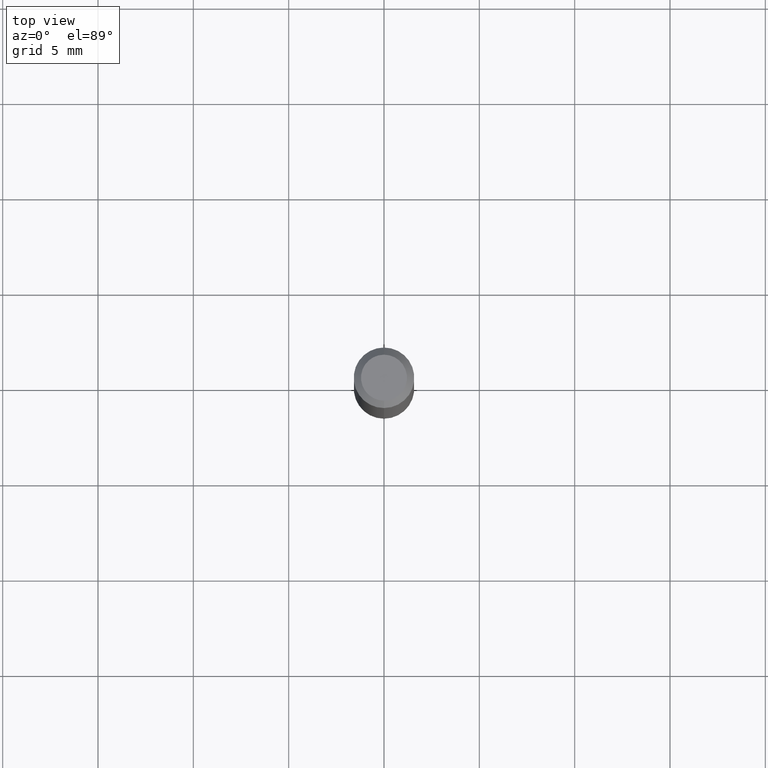
[diagram: clean part render]
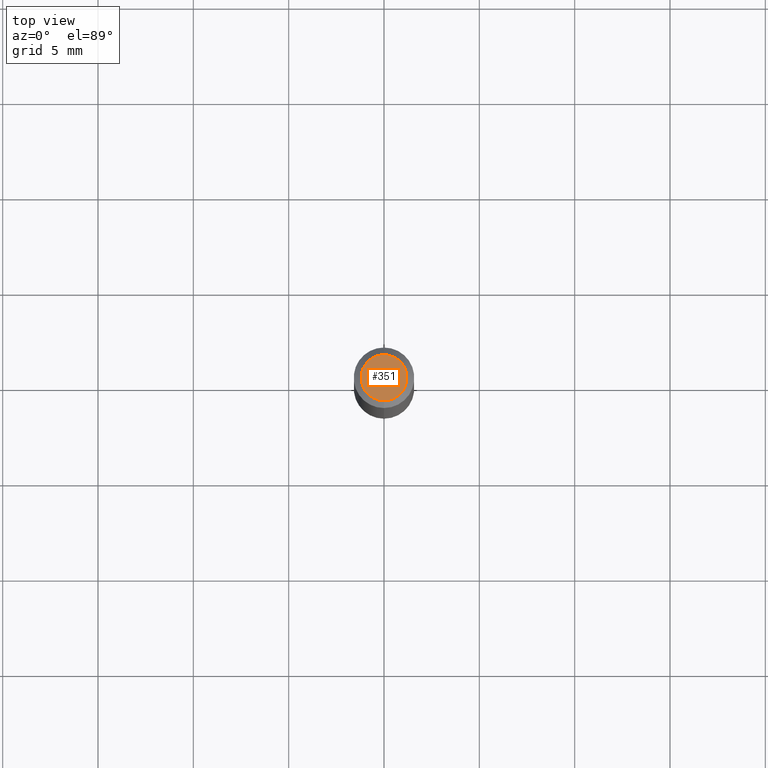
[diagram: same view with one face highlighted and labeled with its STEP entity id]
A machine part, top view. The second image highlights one B-rep face of the part: STEP entity #351.
In plain terms, the highlighted planar face has unit normal (0, -0, -1).
Its self-contained STEP definition (entity closure, byte-faithful):
#14 = PLANE ( 'NONE',  #79 ) ;
#18 = CIRCLE ( 'NONE', #303, 0.04749999999999999362 ) ;
#79 = AXIS2_PLACEMENT_3D ( 'NONE', #135, #321, #404 ) ;
#88 = CARTESIAN_POINT ( 'NONE',  ( 3.840629472727447874E-16, 0.04749999999999999362, -1.747056831868805136E-16 ) ) ;
#128 = CARTESIAN_POINT ( 'NONE',  ( 2.166898054252176788E-46, -3.093736676083309721E-32, -8.860841916345176913E-18 ) ) ;
#129 = CIRCLE ( 'NONE', #314, 0.04749999999999999362 ) ;
#132 = EDGE_LOOP ( 'NONE', ( #289, #279 ) ) ;
#135 = CARTESIAN_POINT ( 'NONE',  ( 3.316907271900976096E-16, 0.04749999999999999362, -1.702752622287078928E-16 ) ) ;
#153 = DIRECTION ( 'NONE',  ( -2.445476484864267913E-29, 3.491470342537585919E-15, 1.000000000000000000 ) ) ;
#155 = DIRECTION ( 'NONE',  ( -6.982962677686266711E-15, -1.000000000000000000, 3.491470342537586314E-15 ) ) ;
#208 = EDGE_CURVE ( 'NONE', #319, #323, #129, .T. ) ;
#213 = DIRECTION ( 'NONE',  ( -2.445476484864267913E-29, 3.491470342537585919E-15, 1.000000000000000000 ) ) ;
#279 = ORIENTED_EDGE ( 'NONE', *, *, #208, .T. ) ;
#284 = FACE_OUTER_BOUND ( 'NONE', #132, .T. ) ;
#285 = CARTESIAN_POINT ( 'NONE',  ( -3.773273898774340269E-16, -0.04749999999999999362, 1.569839993541901536E-16 ) ) ;
#289 = ORIENTED_EDGE ( 'NONE', *, *, #346, .T. ) ;
#303 = AXIS2_PLACEMENT_3D ( 'NONE', #128, #213, #488 ) ;
#310 = CARTESIAN_POINT ( 'NONE',  ( 2.166898054252176788E-46, -3.093736676083309721E-32, -8.860841916345176913E-18 ) ) ;
#314 = AXIS2_PLACEMENT_3D ( 'NONE', #310, #153, #155 ) ;
#319 = VERTEX_POINT ( 'NONE', #285 ) ;
#321 = DIRECTION ( 'NONE',  ( 2.445476484864267913E-29, -3.491470342537585919E-15, -1.000000000000000000 ) ) ;
#323 = VERTEX_POINT ( 'NONE', #88 ) ;
#346 = EDGE_CURVE ( 'NONE', #323, #319, #18, .T. ) ;
#351 = ADVANCED_FACE ( 'NONE', ( #284 ), #14, .F. ) ;
#404 = DIRECTION ( 'NONE',  ( 6.982962677686265922E-15, 1.000000000000000000, -3.491470342537585919E-15 ) ) ;
#488 = DIRECTION ( 'NONE',  ( -6.982962677686266711E-15, -1.000000000000000000, 3.491470342537586314E-15 ) ) ;